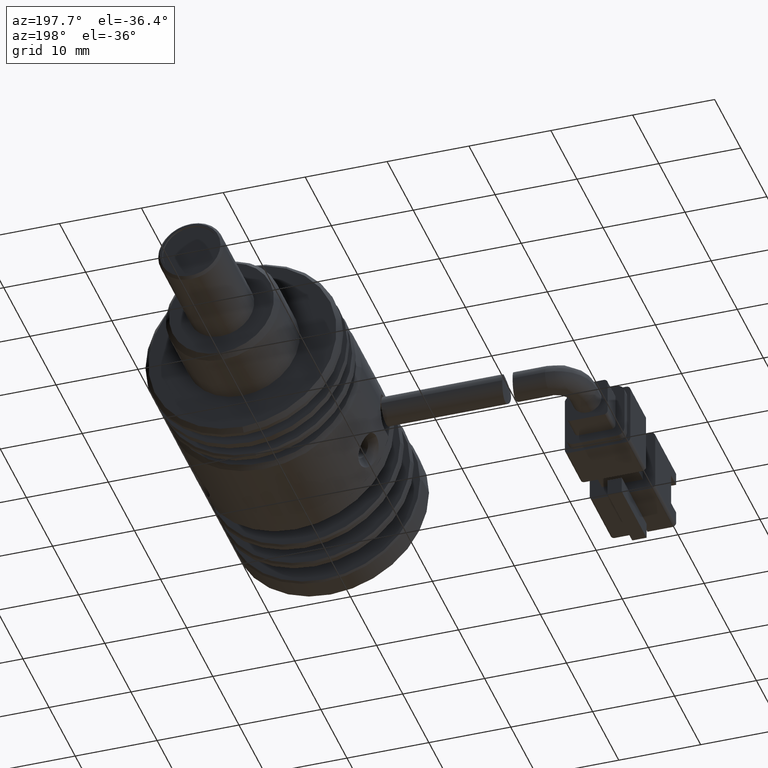
[diagram: clean part render]
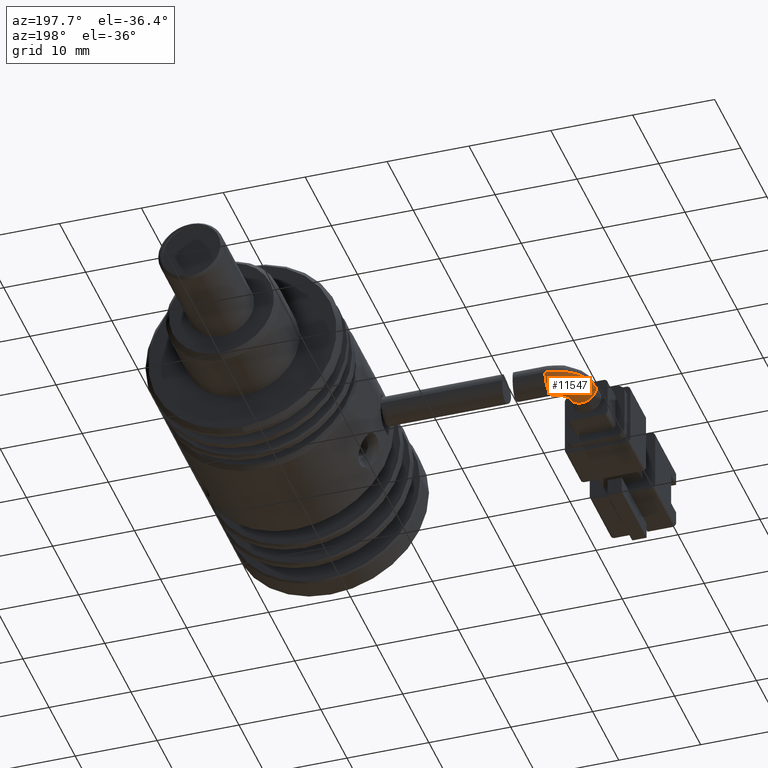
[diagram: same view with one face highlighted and labeled with its STEP entity id]
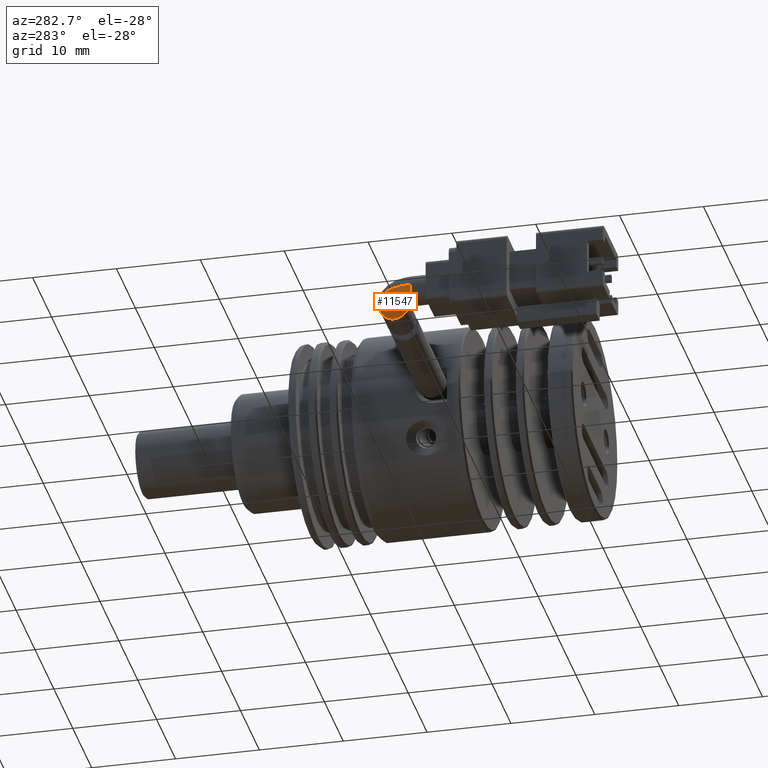
[diagram: same view with one face highlighted and labeled with its STEP entity id]
A machine part, auxiliary view. The second image highlights one B-rep face of the part: STEP entity #11547.
A second angle (auxiliary view) of the same face is appended — the face is thin or edge-on in the first view.
In plain terms, the highlighted face is a freeform B-spline surface patch.
Its self-contained STEP definition (entity closure, byte-faithful):
#298 = AXIS2_PLACEMENT_3D ( 'NONE', #9310, #438, #10789 ) ;
#384 = DIRECTION ( 'NONE',  ( 0.0000000000000000000, 1.000000000000000000, 9.912705577010326500E-016 ) ) ;
#438 = DIRECTION ( 'NONE',  ( 3.590459175806343900E-017, 1.137978600240785100E-015, -1.000000000000000000 ) ) ;
#1422 = CARTESIAN_POINT ( 'NONE',  ( -30.67506621236419000, -16.23270246297893100, -12.57403592165939400 ) ) ;
#1756 = AXIS2_PLACEMENT_3D ( 'NONE', #13364, #4484, #14855 ) ;
#2006 = VERTEX_POINT ( 'NONE', #7596 ) ;
#2342 = CIRCLE ( 'NONE', #15438, 1.249999999999997600 ) ;
#2379 = ORIENTED_EDGE ( 'NONE', *, *, #12563, .T. ) ;
#2532 = AXIS2_PLACEMENT_3D ( 'NONE', #18131, #9248, #384 ) ;
#2905 = CARTESIAN_POINT ( 'NONE',  ( -29.42506621236418600, -15.71493551001255000, -12.57403592165939300 ) ) ;
#2979 =( BOUNDED_SURFACE ( )  B_SPLINE_SURFACE ( 3, 3, ( 
 ( #19105, #17676, #8788, #19170 ),
 ( #10288, #1422, #11755, #2905 ),
 ( #13252, #4368, #14755, #5864 ),
 ( #16212, #7348, #17733, #8849 ) ),
 .UNSPECIFIED., .F., .F., .F. ) 
 B_SPLINE_SURFACE_WITH_KNOTS ( ( 4, 4 ),
 ( 4, 4 ),
 ( 0.0000000000000000000, 1.000000000000000000 ),
 ( 0.0000000000000000000, 1.000000000000000000 ),
 .UNSPECIFIED. ) 
 GEOMETRIC_REPRESENTATION_ITEM ( )  RATIONAL_B_SPLINE_SURFACE ( (
 ( 1.000000000000000000, 0.8047378541243649400, 0.8047378541243649400, 1.000000000000000000),
 ( 0.3333333333333333700, 0.2682459513747883500, 0.2682459513747883500, 0.3333333333333333700),
 ( 0.3333333333333333700, 0.2682459513747883500, 0.2682459513747883500, 0.3333333333333333700),
 ( 1.000000000000000000, 0.8047378541243649400, 0.8047378541243649400, 1.000000000000000000) ) ) 
 REPRESENTATION_ITEM ( '' )  SURFACE ( )  );
#3584 = CIRCLE ( 'NONE', #298, 4.749999999999999100 ) ;
#3871 = EDGE_CURVE ( 'NONE', #2006, #10280, #2342, .T. ) ;
#4238 = DIRECTION ( 'NONE',  ( 3.590459175806343900E-017, 1.137978600240785100E-015, -1.000000000000000000 ) ) ;
#4368 = CARTESIAN_POINT ( 'NONE',  ( -34.17506621236419300, -14.18244993128475800, -12.57403592165939100 ) ) ;
#4484 = DIRECTION ( 'NONE',  ( -4.004532030177548000E-016, -1.000000000000000000, -1.137978600240785100E-015 ) ) ;
#5511 = CARTESIAN_POINT ( 'NONE',  ( -29.42506621236419000, -15.71493551001256600, -9.074035921659394400 ) ) ;
#5670 = EDGE_CURVE ( 'NONE', #5858, #2006, #15008, .T. ) ;
#5858 = VERTEX_POINT ( 'NONE', #14131 ) ;
#5864 = CARTESIAN_POINT ( 'NONE',  ( -29.42506621236418600, -12.21493551001255200, -12.57403592165939100 ) ) ;
#7348 = CARTESIAN_POINT ( 'NONE',  ( -34.17506621236419300, -14.18244993128476100, -9.074035921659392700 ) ) ;
#7596 = CARTESIAN_POINT ( 'NONE',  ( -30.67506621236419000, -16.96493551001256300, -9.074035921659396200 ) ) ;
#7915 = ORIENTED_EDGE ( 'NONE', *, *, #13940, .T. ) ;
#8788 = CARTESIAN_POINT ( 'NONE',  ( -30.15729925939782800, -15.71493551001255500, -9.074035921659394400 ) ) ;
#8849 = CARTESIAN_POINT ( 'NONE',  ( -29.42506621236419000, -12.21493551001255000, -9.074035921659390900 ) ) ;
#9248 = DIRECTION ( 'NONE',  ( -1.000000000000000000, 1.861400131669680400E-016, -3.590459175806322900E-017 ) ) ;
#9310 = CARTESIAN_POINT ( 'NONE',  ( -29.42506621236419000, -16.96493551001256300, -9.074035921659396200 ) ) ;
#10280 = VERTEX_POINT ( 'NONE', #5511 ) ;
#10288 = CARTESIAN_POINT ( 'NONE',  ( -30.67506621236419000, -16.96493551001255900, -12.57403592165939600 ) ) ;
#10352 = FACE_OUTER_BOUND ( 'NONE', #11144, .T. ) ;
#10789 = DIRECTION ( 'NONE',  ( 0.0000000000000000000, 1.000000000000000000, 1.095614826932720400E-015 ) ) ;
#11144 = EDGE_LOOP ( 'NONE', ( #17375, #17840, #7915, #2379 ) ) ;
#11400 = CIRCLE ( 'NONE', #2532, 1.749999999999999800 ) ;
#11547 = ADVANCED_FACE ( 'NONE', ( #10352 ), #2979, .T. ) ;
#11755 = CARTESIAN_POINT ( 'NONE',  ( -30.15729925939782800, -15.71493551001254300, -12.57403592165939300 ) ) ;
#12563 = EDGE_CURVE ( 'NONE', #14761, #10280, #11400, .T. ) ;
#13118 = CARTESIAN_POINT ( 'NONE',  ( -29.42506621236419000, -12.21493551001256400, -9.074035921659390900 ) ) ;
#13126 = CARTESIAN_POINT ( 'NONE',  ( -29.42506621236419000, -16.96493551001256300, -9.074035921659396200 ) ) ;
#13252 = CARTESIAN_POINT ( 'NONE',  ( -34.17506621236419300, -16.96493551001255900, -12.57403592165939600 ) ) ;
#13364 = CARTESIAN_POINT ( 'NONE',  ( -32.42506621236419300, -16.96493551001256300, -9.074035921659396200 ) ) ;
#13940 = EDGE_CURVE ( 'NONE', #5858, #14761, #3584, .T. ) ;
#14131 = CARTESIAN_POINT ( 'NONE',  ( -34.17506621236418600, -16.96493551001256300, -9.074035921659396200 ) ) ;
#14609 = DIRECTION ( 'NONE',  ( 0.0000000000000000000, 1.000000000000000000, 1.387778780781448400E-015 ) ) ;
#14755 = CARTESIAN_POINT ( 'NONE',  ( -32.20755179109199400, -12.21493551001254800, -12.57403592165938900 ) ) ;
#14761 = VERTEX_POINT ( 'NONE', #13118 ) ;
#14855 = DIRECTION ( 'NONE',  ( -1.000000000000000000, 0.0000000000000000000, 0.0000000000000000000 ) ) ;
#15008 = CIRCLE ( 'NONE', #1756, 1.750000000000001600 ) ;
#15438 = AXIS2_PLACEMENT_3D ( 'NONE', #13126, #4238, #14609 ) ;
#16212 = CARTESIAN_POINT ( 'NONE',  ( -34.17506621236419300, -16.96493551001256300, -9.074035921659396200 ) ) ;
#17375 = ORIENTED_EDGE ( 'NONE', *, *, #3871, .F. ) ;
#17676 = CARTESIAN_POINT ( 'NONE',  ( -30.67506621236419000, -16.23270246297893100, -9.074035921659396200 ) ) ;
#17733 = CARTESIAN_POINT ( 'NONE',  ( -32.20755179109200100, -12.21493551001255000, -9.074035921659389100 ) ) ;
#17840 = ORIENTED_EDGE ( 'NONE', *, *, #5670, .F. ) ;
#18131 = CARTESIAN_POINT ( 'NONE',  ( -29.42506621236419000, -13.96493551001256400, -9.074035921659392700 ) ) ;
#19105 = CARTESIAN_POINT ( 'NONE',  ( -30.67506621236419000, -16.96493551001256300, -9.074035921659396200 ) ) ;
#19170 = CARTESIAN_POINT ( 'NONE',  ( -29.42506621236419000, -15.71493551001255500, -9.074035921659394400 ) ) ;